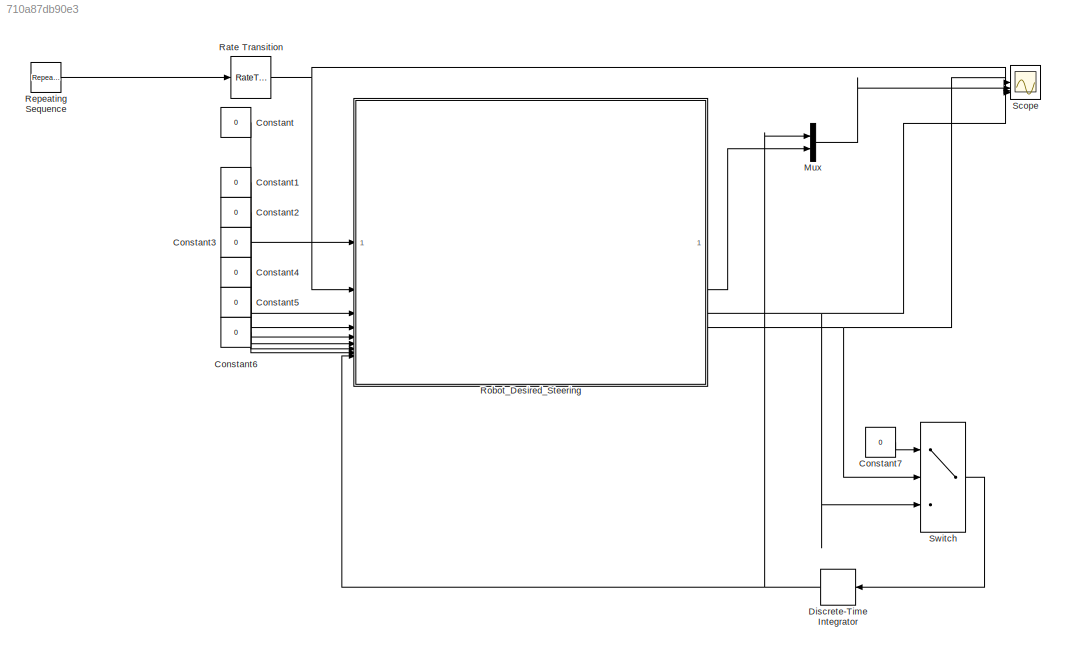
MODEL slx_710a87db90e3
KIND model
CONFIG AbsTol = auto
CONFIG EnableMultiTasking = off
CONFIG FixedStep = auto
CONFIG MaxStep = .02
CONFIG MinStep = auto
CONFIG RelTol = 1e-3
CONFIG SampleTimeConstraint = Unconstrained
CONFIG SolverName = VariableStepDiscrete
CONFIG StartTime = 0.0
CONFIG StopTime = 4
BLOCK [Constant] Constant
  Value = 0
BLOCK [Constant] Constant1
  Value = 0
BLOCK [Constant] Constant2
  Value = 0
BLOCK [Constant] Constant3
  Value = 0
BLOCK [Constant] Constant4
  Value = 0
BLOCK [Constant] Constant5
  Value = 0
BLOCK [Constant] Constant6
  Value = 0
BLOCK [Constant] Constant7
  Value = 0
BLOCK [DiscreteIntegrator] Discrete-Time Integrator
  ICPrevOutput = DiscIntNeverNeededParam
  ICPrevScaledInput = DiscIntNeverNeededParam
  InitialConditionSetting = Auto
  SampleTime = -1
  gainval = 0.2
BLOCK [Mux] Mux
  DisplayOption = bar
  Inputs = 2
BLOCK [RateTransition] Rate Transition
  OutPortSampleTime = 0.02
BLOCK [Reference] Repeating Sequence  REF=simulink/Sources/Repeating
Sequence
  SourceBlock = simulink/Sources/Repeating\nSequence
  SourceType = Repeating table
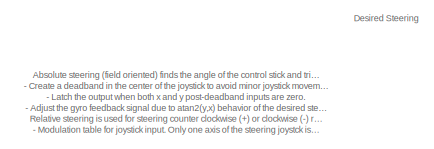
[diagram: Robot_Desired_Steering - part 1/6, top left region]
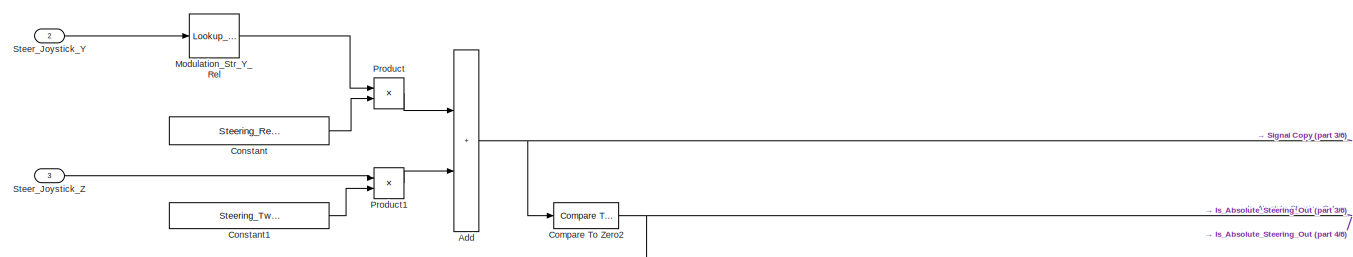
[diagram: Robot_Desired_Steering - part 2/6, top center region]
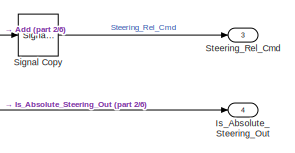
[diagram: Robot_Desired_Steering - part 3/6, top right region]
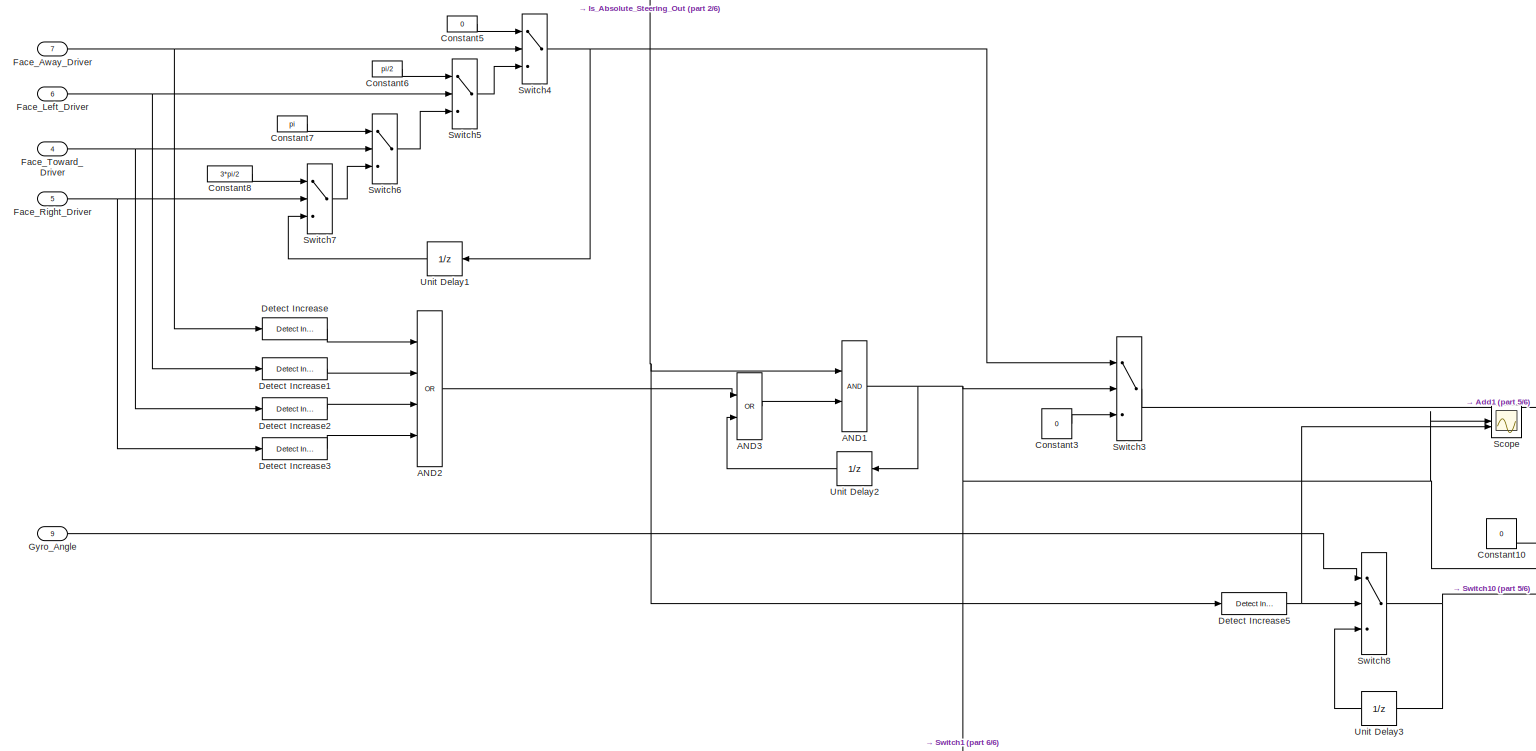
[diagram: Robot_Desired_Steering - part 4/6, full width, middle band]
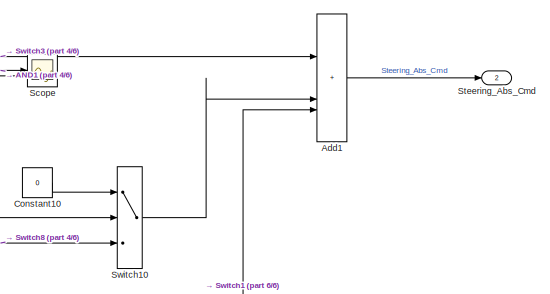
[diagram: Robot_Desired_Steering - part 5/6, middle right region]
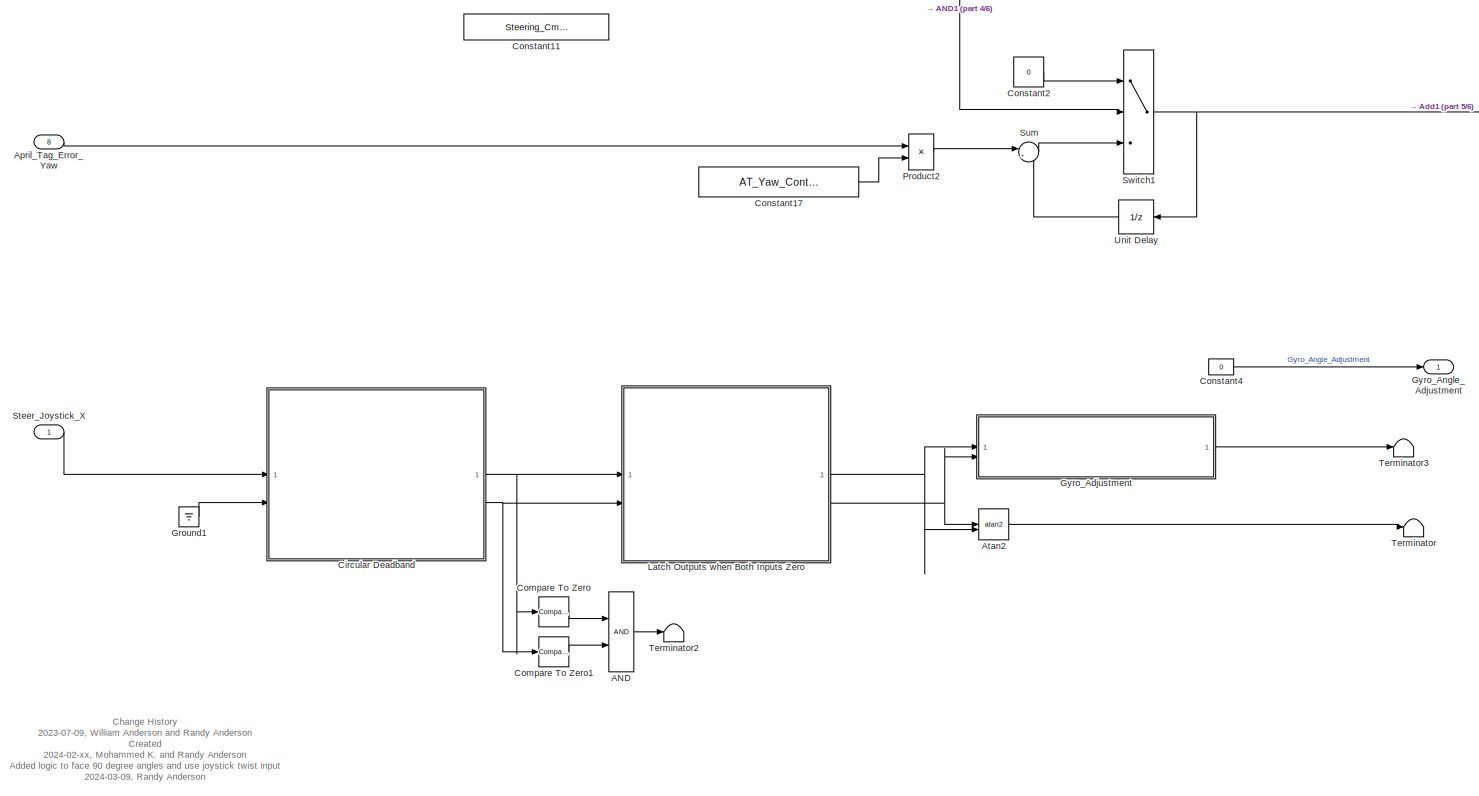
[diagram: Robot_Desired_Steering - part 6/6, full width, bottom band]
BLOCK [SubSystem] Robot_Desired_Steering
BLOCK [Logic] Robot_Desired_Steering/AND
  AllPortsSameDT = off
  Commented = on
  OutDataTypeStr = boolean
BLOCK [Logic] Robot_Desired_Steering/AND1
  AllPortsSameDT = off
  OutDataTypeStr = boolean
BLOCK [Logic] Robot_Desired_Steering/AND2
  AllPortsSameDT = off
  Inputs = 4
  Operator = OR
  OutDataTypeStr = boolean
BLOCK [Logic] Robot_Desired_Steering/AND3
  AllPortsSameDT = off
  Operator = OR
  OutDataTypeStr = boolean
BLOCK [Sum] Robot_Desired_Steering/Add
  IconShape = rectangular
BLOCK [Sum] Robot_Desired_Steering/Add1
  IconShape = rectangular
  Inputs = 3
BLOCK [Inport] Robot_Desired_Steering/April_Tag_Error_Yaw
  Port = 8
BLOCK [Trigonometry] Robot_Desired_Steering/Atan2
  Commented = on
  Operator = atan2
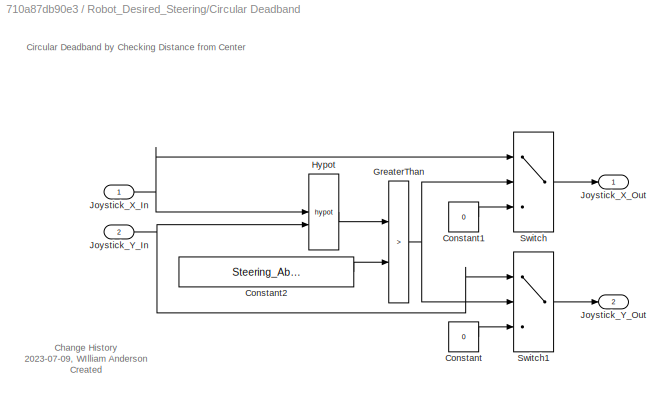
BLOCK [SubSystem] Robot_Desired_Steering/Circular Deadband
  Commented = on
BLOCK [Constant] Robot_Desired_Steering/Circular Deadband/Constant
  Value = 0
BLOCK [Constant] Robot_Desired_Steering/Circular Deadband/Constant1
  Value = 0
BLOCK [Constant] Robot_Desired_Steering/Circular Deadband/Constant2
  Value = Steering_Abs_Deadband_Range
BLOCK [RelationalOperator] Robot_Desired_Steering/Circular Deadband/GreaterThan
  InputSameDT = off
  Operator = >
  OutDataTypeStr = boolean
  RndMeth = Simplest
BLOCK [Math] Robot_Desired_Steering/Circular Deadband/Hypot
  Operator = hypot
BLOCK [Inport] Robot_Desired_Steering/Circular Deadband/Joystick_X_In
BLOCK [Outport] Robot_Desired_Steering/Circular Deadband/Joystick_X_Out
BLOCK [Inport] Robot_Desired_Steering/Circular Deadband/Joystick_Y_In
  Port = 2
BLOCK [Outport] Robot_Desired_Steering/Circular Deadband/Joystick_Y_Out
  Port = 2
BLOCK [Switch] Robot_Desired_Steering/Circular Deadband/Switch
  Criteria = u2 > Threshold
  InputSameDT = off
  SaturateOnIntegerOverflow = off
BLOCK [Switch] Robot_Desired_Steering/Circular Deadband/Switch1
  Criteria = u2 > Threshold
  InputSameDT = off
  SaturateOnIntegerOverflow = off
BLOCK [Reference] Robot_Desired_Steering/Compare To Zero  REF=simulink/Logic and Bit
Operations/Compare
To Zero
  Commented = on
  SourceBlock = simulink/Logic and Bit\nOperations/Compare\nTo Zero
  SourceType = Compare To Zero
BLOCK [Reference] Robot_Desired_Steering/Compare To Zero1  REF=simulink/Logic and Bit
Operations/Compare
To Zero
  Commented = on
  SourceBlock = simulink/Logic and Bit\nOperations/Compare\nTo Zero
  SourceType = Compare To Zero
BLOCK [Reference] Robot_Desired_Steering/Compare To Zero2  REF=simulink/Logic and Bit
Operations/Compare
To Zero
  SourceBlock = simulink/Logic and Bit\nOperations/Compare\nTo Zero
  SourceType = Compare To Zero
BLOCK [Constant] Robot_Desired_Steering/Constant
  Value = Steering_Relative_Gain
BLOCK [Constant] Robot_Desired_Steering/Constant1
  Value = Steering_Twist_Gain
BLOCK [Constant] Robot_Desired_Steering/Constant10
  Value = 0
BLOCK [Constant] Robot_Desired_Steering/Constant11
  Value = Steering_Cmd_Timeout
BLOCK [Constant] Robot_Desired_Steering/Constant17
  Value = AT_Yaw_Control_Gain
BLOCK [Constant] Robot_Desired_Steering/Constant2
  Value = 0
BLOCK [Constant] Robot_Desired_Steering/Constant3
  Value = 0
BLOCK [Constant] Robot_Desired_Steering/Constant4
  Value = 0
BLOCK [Constant] Robot_Desired_Steering/Constant5
  Value = 0
BLOCK [Constant] Robot_Desired_Steering/Constant6
  Value = pi/2
BLOCK [Constant] Robot_Desired_Steering/Constant7
  Value = pi
BLOCK [Constant] Robot_Desired_Steering/Constant8
  Value = 3*pi/2
BLOCK [Reference] Robot_Desired_Steering/Detect Increase  REF=simulink/Logic and Bit
Operations/Detect
Increase
  SourceBlock = simulink/Logic and Bit\nOperations/Detect\nIncrease
  SourceType = Detect Increase
BLOCK [Reference] Robot_Desired_Steering/Detect Increase1  REF=simulink/Logic and Bit
Operations/Detect
Increase
  SourceBlock = simulink/Logic and Bit\nOperations/Detect\nIncrease
  SourceType = Detect Increase
BLOCK [Reference] Robot_Desired_Steering/Detect Increase2  REF=simulink/Logic and Bit
Operations/Detect
Increase
  SourceBlock = simulink/Logic and Bit\nOperations/Detect\nIncrease
  SourceType = Detect Increase
BLOCK [Reference] Robot_Desired_Steering/Detect Increase3  REF=simulink/Logic and Bit
Operations/Detect
Increase
  SourceBlock = simulink/Logic and Bit\nOperations/Detect\nIncrease
  SourceType = Detect Increase
BLOCK [Reference] Robot_Desired_Steering/Detect Increase5  REF=simulink/Logic and Bit
Operations/Detect
Increase
  SourceBlock = simulink/Logic and Bit\nOperations/Detect\nIncrease
  SourceType = Detect Increase
BLOCK [Inport] Robot_Desired_Steering/Face_Away_Driver
  Port = 7
BLOCK [Inport] Robot_Desired_Steering/Face_Left_Driver
  Port = 6
BLOCK [Inport] Robot_Desired_Steering/Face_Right_Driver
  Port = 5
BLOCK [Inport] Robot_Desired_Steering/Face_Toward_Driver
  Port = 4
BLOCK [Ground] Robot_Desired_Steering/Ground1
  Commented = on
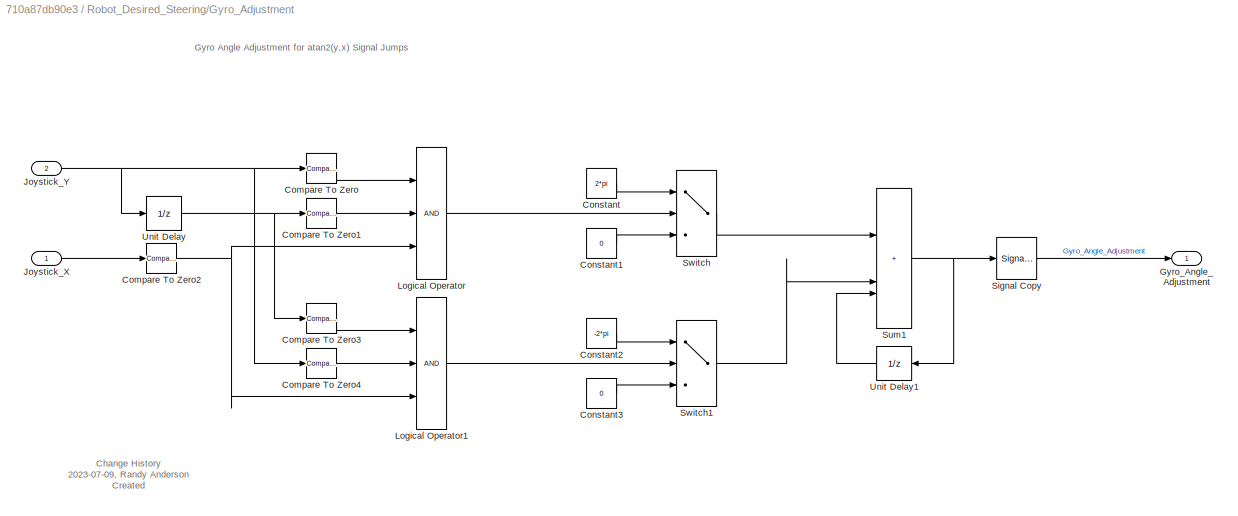
BLOCK [SubSystem] Robot_Desired_Steering/Gyro_Adjustment
  Commented = on
BLOCK [Reference] Robot_Desired_Steering/Gyro_Adjustment/Compare To Zero  REF=hdlsllib/Logic and Bit
Operations/Compare
To Zero
  SourceBlock = hdlsllib/Logic and Bit\nOperations/Compare\nTo Zero
  SourceType = Compare To Zero
BLOCK [Reference] Robot_Desired_Steering/Gyro_Adjustment/Compare To Zero1  REF=hdlsllib/Logic and Bit
Operations/Compare
To Zero
  SourceBlock = hdlsllib/Logic and Bit\nOperations/Compare\nTo Zero
  SourceType = Compare To Zero
BLOCK [Reference] Robot_Desired_Steering/Gyro_Adjustment/Compare To Zero2  REF=hdlsllib/Logic and Bit
Operations/Compare
To Zero
  SourceBlock = hdlsllib/Logic and Bit\nOperations/Compare\nTo Zero
  SourceType = Compare To Zero
BLOCK [Reference] Robot_Desired_Steering/Gyro_Adjustment/Compare To Zero3  REF=hdlsllib/Logic and Bit
Operations/Compare
To Zero
  SourceBlock = hdlsllib/Logic and Bit\nOperations/Compare\nTo Zero
  SourceType = Compare To Zero
BLOCK [Reference] Robot_Desired_Steering/Gyro_Adjustment/Compare To Zero4  REF=hdlsllib/Logic and Bit
Operations/Compare
To Zero
  SourceBlock = hdlsllib/Logic and Bit\nOperations/Compare\nTo Zero
  SourceType = Compare To Zero
BLOCK [Constant] Robot_Desired_Steering/Gyro_Adjustment/Constant
  Value = 2*pi
BLOCK [Constant] Robot_Desired_Steering/Gyro_Adjustment/Constant1
  Value = 0
BLOCK [Constant] Robot_Desired_Steering/Gyro_Adjustment/Constant2
  Value = -2*pi
BLOCK [Constant] Robot_Desired_Steering/Gyro_Adjustment/Constant3
  Value = 0
BLOCK [Outport] Robot_Desired_Steering/Gyro_Adjustment/Gyro_Angle_Adjustment
BLOCK [Inport] Robot_Desired_Steering/Gyro_Adjustment/Joystick_X
BLOCK [Inport] Robot_Desired_Steering/Gyro_Adjustment/Joystick_Y
  Port = 2
BLOCK [Logic] Robot_Desired_Steering/Gyro_Adjustment/Logical Operator
  AllPortsSameDT = off
  Inputs = 3
  OutDataTypeStr = boolean
BLOCK [Logic] Robot_Desired_Steering/Gyro_Adjustment/Logical Operator1
  AllPortsSameDT = off
  Inputs = 3
  OutDataTypeStr = boolean
BLOCK [SignalConversion] Robot_Desired_Steering/Gyro_Adjustment/Signal Copy
  OverrideOpt = off
BLOCK [Sum] Robot_Desired_Steering/Gyro_Adjustment/Sum1
  IconShape = rectangular
  Inputs = 3
BLOCK [Switch] Robot_Desired_Steering/Gyro_Adjustment/Switch
  Criteria = u2 ~= 0
  InputSameDT = off
  SaturateOnIntegerOverflow = off
BLOCK [Switch] Robot_Desired_Steering/Gyro_Adjustment/Switch1
  Criteria = u2 ~= 0
  InputSameDT = off
  SaturateOnIntegerOverflow = off
BLOCK [UnitDelay] Robot_Desired_Steering/Gyro_Adjustment/Unit Delay
  HasFrameUpgradeWarning = on
  SampleTime = -1
BLOCK [UnitDelay] Robot_Desired_Steering/Gyro_Adjustment/Unit Delay1
  HasFrameUpgradeWarning = on
  SampleTime = -1
BLOCK [Inport] Robot_Desired_Steering/Gyro_Angle
  Port = 9
BLOCK [Outport] Robot_Desired_Steering/Gyro_Angle_Adjustment
BLOCK [Outport] Robot_Desired_Steering/Is_Absolute_Steering_Out
  Port = 4
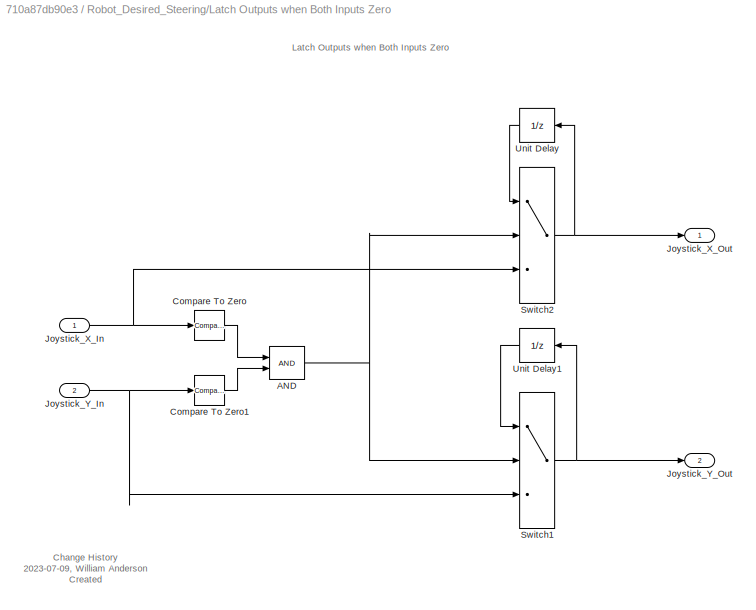
BLOCK [SubSystem] Robot_Desired_Steering/Latch Outputs when Both Inputs Zero
  Commented = on
BLOCK [Logic] Robot_Desired_Steering/Latch Outputs when Both Inputs Zero/AND
  AllPortsSameDT = off
  OutDataTypeStr = boolean
BLOCK [Reference] Robot_Desired_Steering/Latch Outputs when Both Inputs Zero/Compare To Zero  REF=simulink/Logic and Bit
Operations/Compare
To Zero
  SourceBlock = simulink/Logic and Bit\nOperations/Compare\nTo Zero
  SourceType = Compare To Zero
BLOCK [Reference] Robot_Desired_Steering/Latch Outputs when Both Inputs Zero/Compare To Zero1  REF=simulink/Logic and Bit
Operations/Compare
To Zero
  SourceBlock = simulink/Logic and Bit\nOperations/Compare\nTo Zero
  SourceType = Compare To Zero
BLOCK [Inport] Robot_Desired_Steering/Latch Outputs when Both Inputs Zero/Joystick_X_In
BLOCK [Outport] Robot_Desired_Steering/Latch Outputs when Both Inputs Zero/Joystick_X_Out
BLOCK [Inport] Robot_Desired_Steering/Latch Outputs when Both Inputs Zero/Joystick_Y_In
  Port = 2
BLOCK [Outport] Robot_Desired_Steering/Latch Outputs when Both Inputs Zero/Joystick_Y_Out
  Port = 2
BLOCK [Switch] Robot_Desired_Steering/Latch Outputs when Both Inputs Zero/Switch1
  Criteria = u2 > Threshold
  InputSameDT = off
  SaturateOnIntegerOverflow = off
BLOCK [Switch] Robot_Desired_Steering/Latch Outputs when Both Inputs Zero/Switch2
  Criteria = u2 > Threshold
  InputSameDT = off
  SaturateOnIntegerOverflow = off
BLOCK [UnitDelay] Robot_Desired_Steering/Latch Outputs when Both Inputs Zero/Unit Delay
  HasFrameUpgradeWarning = on
  SampleTime = -1
BLOCK [UnitDelay] Robot_Desired_Steering/Latch Outputs when Both Inputs Zero/Unit Delay1
  HasFrameUpgradeWarning = on
  SampleTime = -1
BLOCK [Lookup_n-D] Robot_Desired_Steering/Modulation_Str_Y_Rel
  BreakpointsForDimension1 = Steering_Mod_Str_Rel_in
  ExtrapMethod = Clip
  InputPortMap = u0
  InternalRulePriority = Speed
  NumberOfTableDimensions = 1
  RndMeth = Simplest
  Table = Steering_Mod_Str_Rel_out
BLOCK [Product] Robot_Desired_Steering/Product
BLOCK [Product] Robot_Desired_Steering/Product1
BLOCK [Product] Robot_Desired_Steering/Product2
BLOCK [Scope] Robot_Desired_Steering/Scope
  Floating = off
  NumInputPorts = 2
  ScopeSpecificationString = Simulink.scopes.TimeScopeBlockCfg('CurrentConfiguration', extmgr.ConfigurationSet(extmgr.Configuration('Core','General UI',true),extmgr.Configuration('Core','Source UI',true),extmgr.Configuration('Sources','WiredSimulink',true,'DataLoggingVariableName','ScopeData1'),extmgr.Configuration('Visuals','Time Domain',true,'SerializedDisplays',{struct('MinYLimReal','-0.125','MaxYLimReal','1.125','YLabelRe...<+1427ch>
BLOCK [SignalConversion] Robot_Desired_Steering/Signal Copy
  OverrideOpt = off
BLOCK [Inport] Robot_Desired_Steering/Steer_Joystick_X
BLOCK [Inport] Robot_Desired_Steering/Steer_Joystick_Y
  Port = 2
BLOCK [Inport] Robot_Desired_Steering/Steer_Joystick_Z
  Port = 3
BLOCK [Outport] Robot_Desired_Steering/Steering_Abs_Cmd
  Port = 2
BLOCK [Outport] Robot_Desired_Steering/Steering_Rel_Cmd
  Port = 3
BLOCK [Sum] Robot_Desired_Steering/Sum
  Inputs = |++
BLOCK [Switch] Robot_Desired_Steering/Switch1
  Criteria = u2 ~= 0
  InputSameDT = off
  SaturateOnIntegerOverflow = off
BLOCK [Switch] Robot_Desired_Steering/Switch10
  Criteria = u2 ~= 0
  InputSameDT = off
  SaturateOnIntegerOverflow = off
BLOCK [Switch] Robot_Desired_Steering/Switch3
  Criteria = u2 ~= 0
  InputSameDT = off
  SaturateOnIntegerOverflow = off
BLOCK [Switch] Robot_Desired_Steering/Switch4
  Criteria = u2 ~= 0
  InputSameDT = off
  SaturateOnIntegerOverflow = off
BLOCK [Switch] Robot_Desired_Steering/Switch5
  Criteria = u2 ~= 0
  InputSameDT = off
  SaturateOnIntegerOverflow = off
BLOCK [Switch] Robot_Desired_Steering/Switch6
  Criteria = u2 ~= 0
  InputSameDT = off
  SaturateOnIntegerOverflow = off
BLOCK [Switch] Robot_Desired_Steering/Switch7
  Criteria = u2 ~= 0
  InputSameDT = off
  SaturateOnIntegerOverflow = off
BLOCK [Switch] Robot_Desired_Steering/Switch8
  Criteria = u2 ~= 0
  InputSameDT = off
  SaturateOnIntegerOverflow = off
BLOCK [Terminator] Robot_Desired_Steering/Terminator
  Commented = on
BLOCK [Terminator] Robot_Desired_Steering/Terminator2
  Commented = on
BLOCK [Terminator] Robot_Desired_Steering/Terminator3
  Commented = on
BLOCK [UnitDelay] Robot_Desired_Steering/Unit Delay
  HasFrameUpgradeWarning = on
  SampleTime = -1
BLOCK [UnitDelay] Robot_Desired_Steering/Unit Delay1
  HasFrameUpgradeWarning = on
  SampleTime = -1
BLOCK [UnitDelay] Robot_Desired_Steering/Unit Delay2
  HasFrameUpgradeWarning = on
  SampleTime = -1
BLOCK [UnitDelay] Robot_Desired_Steering/Unit Delay3
  HasFrameUpgradeWarning = on
  SampleTime = -1
BLOCK [Scope] Scope
  Floating = off
  NumInputPorts = 4
  ScopeSpecificationString = Simulink.scopes.TimeScopeBlockCfg('CurrentConfiguration', extmgr.ConfigurationSet(extmgr.Configuration('Core','General UI',true),extmgr.Configuration('Core','Source UI',true),extmgr.Configuration('Sources','WiredSimulink',true),extmgr.Configuration('Visuals','Time Domain',true,'SerializedDisplays',{struct('MinYLimReal','-2.375','MaxYLimReal','1.375','YLabelReal','','MinYLimMag','0.00000','MaxYLimM...<+3493ch>
BLOCK [Switch] Switch
  Criteria = u2 ~= 0
  InputSameDT = off
  SaturateOnIntegerOverflow = off
ANNOTATION Robot_Desired_Steering: Change History 2023-07-09, William Anderson and Randy Anderson Created 2024-02-xx, Mohammed K. and Randy Anderson Added logic to face 90 degree angles and use joystick twist input 2024-03-09, Randy Anderson Added input from April Tag yaw angle error and added to steering command 2024-03-15, Randy Anderson Changed to use relative steering from joystick x-axis (not absolute from x-y). Added output t...<+370ch>
ANNOTATION Robot_Desired_Steering: Absolute steering (field oriented) finds the angle of the control stick and tries to get the robot's heading to face that way. - Create a deadband in the center of the joystick to avoid minor joystick movement resulting in large heading changes. - Latch the output when both x and y post-deadband inputs are zero. - Adjust the gyro feedback signal due to atan2(y,x) behavior of the desired steering c...<+367ch>
ANNOTATION Robot_Desired_Steering: Desired Steering
ANNOTATION Robot_Desired_Steering/Circular Deadband: Circular Deadband by Checking Distance from Center
ANNOTATION Robot_Desired_Steering/Circular Deadband: Change History 2023-07-09, WIlliam Anderson Created
ANNOTATION Robot_Desired_Steering/Gyro_Adjustment: Change History 2023-07-09, Randy Anderson Created
ANNOTATION Robot_Desired_Steering/Gyro_Adjustment: Gyro Angle Adjustment for atan2(y,x) Signal Jumps
ANNOTATION Robot_Desired_Steering/Latch Outputs when Both Inputs Zero: Latch Outputs when Both Inputs Zero
ANNOTATION Robot_Desired_Steering/Latch Outputs when Both Inputs Zero: Change History 2023-07-09, William Anderson Created
LINE Constant1:1 -> Robot_Desired_Steering:3
LINE Constant2:1 -> Robot_Desired_Steering:4
LINE Constant3:1 -> Robot_Desired_Steering:5
LINE Constant4:1 -> Robot_Desired_Steering:6
LINE Constant5:1 -> Robot_Desired_Steering:7
LINE Constant6:1 -> Robot_Desired_Steering:8
LINE Constant7:1 -> Switch:1
LINE Constant:1 -> Robot_Desired_Steering:1
NET Discrete-Time Integrator:1 -> Mux:1, Robot_Desired_Steering:9
LINE Mux:1 -> Scope:2
NET Rate Transition:1 -> Robot_Desired_Steering:2, Scope:1
LINE Repeating Sequence:1 -> Rate Transition:1
NET Robot_Desired_Steering/AND1:1 -> Robot_Desired_Steering/Scope:1, Robot_Desired_Steering/Switch10:2, Robot_Desired_Steering/Switch1:2, Robot_Desired_Steering/Switch3:2, Robot_Desired_Steering/Unit Delay2:1
LINE Robot_Desired_Steering/AND2:1 -> Robot_Desired_Steering/AND3:1
LINE Robot_Desired_Steering/AND3:1 -> Robot_Desired_Steering/AND1:2
LINE Robot_Desired_Steering/AND:1 -> Robot_Desired_Steering/Terminator2:1
LINE Robot_Desired_Steering/Add1:1 -> Robot_Desired_Steering/Steering_Abs_Cmd:1
NET Robot_Desired_Steering/Add:1 -> Robot_Desired_Steering/Compare To Zero2:1, Robot_Desired_Steering/Signal Copy:1
LINE Robot_Desired_Steering/April_Tag_Error_Yaw:1 -> Robot_Desired_Steering/Product2:1
LINE Robot_Desired_Steering/Atan2:1 -> Robot_Desired_Steering/Terminator:1
LINE Robot_Desired_Steering/Circular Deadband/Constant1:1 -> Robot_Desired_Steering/Circular Deadband/Switch:3
LINE Robot_Desired_Steering/Circular Deadband/Constant2:1 -> Robot_Desired_Steering/Circular Deadband/GreaterThan:2
LINE Robot_Desired_Steering/Circular Deadband/Constant:1 -> Robot_Desired_Steering/Circular Deadband/Switch1:3
NET Robot_Desired_Steering/Circular Deadband/GreaterThan:1 -> Robot_Desired_Steering/Circular Deadband/Switch1:2, Robot_Desired_Steering/Circular Deadband/Switch:2
LINE Robot_Desired_Steering/Circular Deadband/Hypot:1 -> Robot_Desired_Steering/Circular Deadband/GreaterThan:1
NET Robot_Desired_Steering/Circular Deadband/Joystick_X_In:1 -> Robot_Desired_Steering/Circular Deadband/Hypot:1, Robot_Desired_Steering/Circular Deadband/Switch:1
NET Robot_Desired_Steering/Circular Deadband/Joystick_Y_In:1 -> Robot_Desired_Steering/Circular Deadband/Hypot:2, Robot_Desired_Steering/Circular Deadband/Switch1:1
LINE Robot_Desired_Steering/Circular Deadband/Switch1:1 -> Robot_Desired_Steering/Circular Deadband/Joystick_Y_Out:1
LINE Robot_Desired_Steering/Circular Deadband/Switch:1 -> Robot_Desired_Steering/Circular Deadband/Joystick_X_Out:1
NET Robot_Desired_Steering/Circular Deadband:1 -> Robot_Desired_Steering/Compare To Zero:1, Robot_Desired_Steering/Latch Outputs when Both Inputs Zero:1
NET Robot_Desired_Steering/Circular Deadband:2 -> Robot_Desired_Steering/Compare To Zero1:1, Robot_Desired_Steering/Latch Outputs when Both Inputs Zero:2
LINE Robot_Desired_Steering/Compare To Zero1:1 -> Robot_Desired_Steering/AND:2
NET Robot_Desired_Steering/Compare To Zero2:1 -> Robot_Desired_Steering/AND1:1, Robot_Desired_Steering/Detect Increase5:1, Robot_Desired_Steering/Is_Absolute_Steering_Out:1
LINE Robot_Desired_Steering/Compare To Zero:1 -> Robot_Desired_Steering/AND:1
LINE Robot_Desired_Steering/Constant10:1 -> Robot_Desired_Steering/Switch10:1
LINE Robot_Desired_Steering/Constant17:1 -> Robot_Desired_Steering/Product2:2
LINE Robot_Desired_Steering/Constant1:1 -> Robot_Desired_Steering/Product1:2
LINE Robot_Desired_Steering/Constant2:1 -> Robot_Desired_Steering/Switch1:1
LINE Robot_Desired_Steering/Constant3:1 -> Robot_Desired_Steering/Switch3:3
LINE Robot_Desired_Steering/Constant4:1 -> Robot_Desired_Steering/Gyro_Angle_Adjustment:1
LINE Robot_Desired_Steering/Constant5:1 -> Robot_Desired_Steering/Switch4:1
LINE Robot_Desired_Steering/Constant6:1 -> Robot_Desired_Steering/Switch5:1
LINE Robot_Desired_Steering/Constant7:1 -> Robot_Desired_Steering/Switch6:1
LINE Robot_Desired_Steering/Constant8:1 -> Robot_Desired_Steering/Switch7:1
LINE Robot_Desired_Steering/Constant:1 -> Robot_Desired_Steering/Product:2
LINE Robot_Desired_Steering/Detect Increase1:1 -> Robot_Desired_Steering/AND2:2
LINE Robot_Desired_Steering/Detect Increase2:1 -> Robot_Desired_Steering/AND2:3
LINE Robot_Desired_Steering/Detect Increase3:1 -> Robot_Desired_Steering/AND2:4
NET Robot_Desired_Steering/Detect Increase5:1 -> Robot_Desired_Steering/Scope:2, Robot_Desired_Steering/Switch8:2
LINE Robot_Desired_Steering/Detect Increase:1 -> Robot_Desired_Steering/AND2:1
NET Robot_Desired_Steering/Face_Away_Driver:1 -> Robot_Desired_Steering/Detect Increase:1, Robot_Desired_Steering/Switch4:2
NET Robot_Desired_Steering/Face_Left_Driver:1 -> Robot_Desired_Steering/Detect Increase1:1, Robot_Desired_Steering/Switch5:2
NET Robot_Desired_Steering/Face_Right_Driver:1 -> Robot_Desired_Steering/Detect Increase3:1, Robot_Desired_Steering/Switch7:2
NET Robot_Desired_Steering/Face_Toward_Driver:1 -> Robot_Desired_Steering/Detect Increase2:1, Robot_Desired_Steering/Switch6:2
LINE Robot_Desired_Steering/Ground1:1 -> Robot_Desired_Steering/Circular Deadband:2
LINE Robot_Desired_Steering/Gyro_Adjustment/Compare To Zero1:1 -> Robot_Desired_Steering/Gyro_Adjustment/Logical Operator:2
NET Robot_Desired_Steering/Gyro_Adjustment/Compare To Zero2:1 -> Robot_Desired_Steering/Gyro_Adjustment/Logical Operator1:3, Robot_Desired_Steering/Gyro_Adjustment/Logical Operator:3
LINE Robot_Desired_Steering/Gyro_Adjustment/Compare To Zero3:1 -> Robot_Desired_Steering/Gyro_Adjustment/Logical Operator1:1
LINE Robot_Desired_Steering/Gyro_Adjustment/Compare To Zero4:1 -> Robot_Desired_Steering/Gyro_Adjustment/Logical Operator1:2
LINE Robot_Desired_Steering/Gyro_Adjustment/Compare To Zero:1 -> Robot_Desired_Steering/Gyro_Adjustment/Logical Operator:1
LINE Robot_Desired_Steering/Gyro_Adjustment/Constant1:1 -> Robot_Desired_Steering/Gyro_Adjustment/Switch:3
LINE Robot_Desired_Steering/Gyro_Adjustment/Constant2:1 -> Robot_Desired_Steering/Gyro_Adjustment/Switch1:1
LINE Robot_Desired_Steering/Gyro_Adjustment/Constant3:1 -> Robot_Desired_Steering/Gyro_Adjustment/Switch1:3
LINE Robot_Desired_Steering/Gyro_Adjustment/Constant:1 -> Robot_Desired_Steering/Gyro_Adjustment/Switch:1
LINE Robot_Desired_Steering/Gyro_Adjustment/Joystick_X:1 -> Robot_Desired_Steering/Gyro_Adjustment/Compare To Zero2:1
NET Robot_Desired_Steering/Gyro_Adjustment/Joystick_Y:1 -> Robot_Desired_Steering/Gyro_Adjustment/Compare To Zero4:1, Robot_Desired_Steering/Gyro_Adjustment/Compare To Zero:1, Robot_Desired_Steering/Gyro_Adjustment/Unit Delay:1
LINE Robot_Desired_Steering/Gyro_Adjustment/Logical Operator1:1 -> Robot_Desired_Steering/Gyro_Adjustment/Switch1:2
LINE Robot_Desired_Steering/Gyro_Adjustment/Logical Operator:1 -> Robot_Desired_Steering/Gyro_Adjustment/Switch:2
LINE Robot_Desired_Steering/Gyro_Adjustment/Signal Copy:1 -> Robot_Desired_Steering/Gyro_Adjustment/Gyro_Angle_Adjustment:1
NET Robot_Desired_Steering/Gyro_Adjustment/Sum1:1 -> Robot_Desired_Steering/Gyro_Adjustment/Signal Copy:1, Robot_Desired_Steering/Gyro_Adjustment/Unit Delay1:1
LINE Robot_Desired_Steering/Gyro_Adjustment/Switch1:1 -> Robot_Desired_Steering/Gyro_Adjustment/Sum1:2
LINE Robot_Desired_Steering/Gyro_Adjustment/Switch:1 -> Robot_Desired_Steering/Gyro_Adjustment/Sum1:1
LINE Robot_Desired_Steering/Gyro_Adjustment/Unit Delay1:1 -> Robot_Desired_Steering/Gyro_Adjustment/Sum1:3
NET Robot_Desired_Steering/Gyro_Adjustment/Unit Delay:1 -> Robot_Desired_Steering/Gyro_Adjustment/Compare To Zero1:1, Robot_Desired_Steering/Gyro_Adjustment/Compare To Zero3:1
LINE Robot_Desired_Steering/Gyro_Adjustment:1 -> Robot_Desired_Steering/Terminator3:1
LINE Robot_Desired_Steering/Gyro_Angle:1 -> Robot_Desired_Steering/Switch8:1
NET Robot_Desired_Steering/Latch Outputs when Both Inputs Zero/AND:1 -> Robot_Desired_Steering/Latch Outputs when Both Inputs Zero/Switch1:2, Robot_Desired_Steering/Latch Outputs when Both Inputs Zero/Switch2:2
LINE Robot_Desired_Steering/Latch Outputs when Both Inputs Zero/Compare To Zero1:1 -> Robot_Desired_Steering/Latch Outputs when Both Inputs Zero/AND:2
LINE Robot_Desired_Steering/Latch Outputs when Both Inputs Zero/Compare To Zero:1 -> Robot_Desired_Steering/Latch Outputs when Both Inputs Zero/AND:1
NET Robot_Desired_Steering/Latch Outputs when Both Inputs Zero/Joystick_X_In:1 -> Robot_Desired_Steering/Latch Outputs when Both Inputs Zero/Compare To Zero:1, Robot_Desired_Steering/Latch Outputs when Both Inputs Zero/Switch2:3
NET Robot_Desired_Steering/Latch Outputs when Both Inputs Zero/Joystick_Y_In:1 -> Robot_Desired_Steering/Latch Outputs when Both Inputs Zero/Compare To Zero1:1, Robot_Desired_Steering/Latch Outputs when Both Inputs Zero/Switch1:3
NET Robot_Desired_Steering/Latch Outputs when Both Inputs Zero/Switch1:1 -> Robot_Desired_Steering/Latch Outputs when Both Inputs Zero/Joystick_Y_Out:1, Robot_Desired_Steering/Latch Outputs when Both Inputs Zero/Unit Delay1:1
NET Robot_Desired_Steering/Latch Outputs when Both Inputs Zero/Switch2:1 -> Robot_Desired_Steering/Latch Outputs when Both Inputs Zero/Joystick_X_Out:1, Robot_Desired_Steering/Latch Outputs when Both Inputs Zero/Unit Delay:1
LINE Robot_Desired_Steering/Latch Outputs when Both Inputs Zero/Unit Delay1:1 -> Robot_Desired_Steering/Latch Outputs when Both Inputs Zero/Switch1:1
LINE Robot_Desired_Steering/Latch Outputs when Both Inputs Zero/Unit Delay:1 -> Robot_Desired_Steering/Latch Outputs when Both Inputs Zero/Switch2:1
NET Robot_Desired_Steering/Latch Outputs when Both Inputs Zero:1 -> Robot_Desired_Steering/Atan2:2, Robot_Desired_Steering/Gyro_Adjustment:1
NET Robot_Desired_Steering/Latch Outputs when Both Inputs Zero:2 -> Robot_Desired_Steering/Atan2:1, Robot_Desired_Steering/Gyro_Adjustment:2
LINE Robot_Desired_Steering/Modulation_Str_Y_Rel:1 -> Robot_Desired_Steering/Product:1
LINE Robot_Desired_Steering/Product1:1 -> Robot_Desired_Steering/Add:2
LINE Robot_Desired_Steering/Product2:1 -> Robot_Desired_Steering/Sum:1
LINE Robot_Desired_Steering/Product:1 -> Robot_Desired_Steering/Add:1
LINE Robot_Desired_Steering/Signal Copy:1 -> Robot_Desired_Steering/Steering_Rel_Cmd:1
LINE Robot_Desired_Steering/Steer_Joystick_X:1 -> Robot_Desired_Steering/Circular Deadband:1
LINE Robot_Desired_Steering/Steer_Joystick_Y:1 -> Robot_Desired_Steering/Modulation_Str_Y_Rel:1
LINE Robot_Desired_Steering/Steer_Joystick_Z:1 -> Robot_Desired_Steering/Product1:1
LINE Robot_Desired_Steering/Sum:1 -> Robot_Desired_Steering/Switch1:3
LINE Robot_Desired_Steering/Switch10:1 -> Robot_Desired_Steering/Add1:2
NET Robot_Desired_Steering/Switch1:1 -> Robot_Desired_Steering/Add1:3, Robot_Desired_Steering/Unit Delay:1
LINE Robot_Desired_Steering/Switch3:1 -> Robot_Desired_Steering/Add1:1
NET Robot_Desired_Steering/Switch4:1 -> Robot_Desired_Steering/Switch3:1, Robot_Desired_Steering/Unit Delay1:1
LINE Robot_Desired_Steering/Switch5:1 -> Robot_Desired_Steering/Switch4:3
LINE Robot_Desired_Steering/Switch6:1 -> Robot_Desired_Steering/Switch5:3
LINE Robot_Desired_Steering/Switch7:1 -> Robot_Desired_Steering/Switch6:3
NET Robot_Desired_Steering/Switch8:1 -> Robot_Desired_Steering/Switch10:3, Robot_Desired_Steering/Unit Delay3:1
LINE Robot_Desired_Steering/Unit Delay1:1 -> Robot_Desired_Steering/Switch7:3
LINE Robot_Desired_Steering/Unit Delay2:1 -> Robot_Desired_Steering/AND3:2
LINE Robot_Desired_Steering/Unit Delay3:1 -> Robot_Desired_Steering/Switch8:3
LINE Robot_Desired_Steering/Unit Delay:1 -> Robot_Desired_Steering/Sum:2
LINE Robot_Desired_Steering:2 -> Mux:2
NET Robot_Desired_Steering:3 -> Scope:3, Switch:3
NET Robot_Desired_Steering:4 -> Scope:4, Switch:2
LINE Switch:1 -> Discrete-Time Integrator:1
note: NET lines group one-source signal fan-out (src -> all destinations, sorted); 1:1 wires keep LINE
